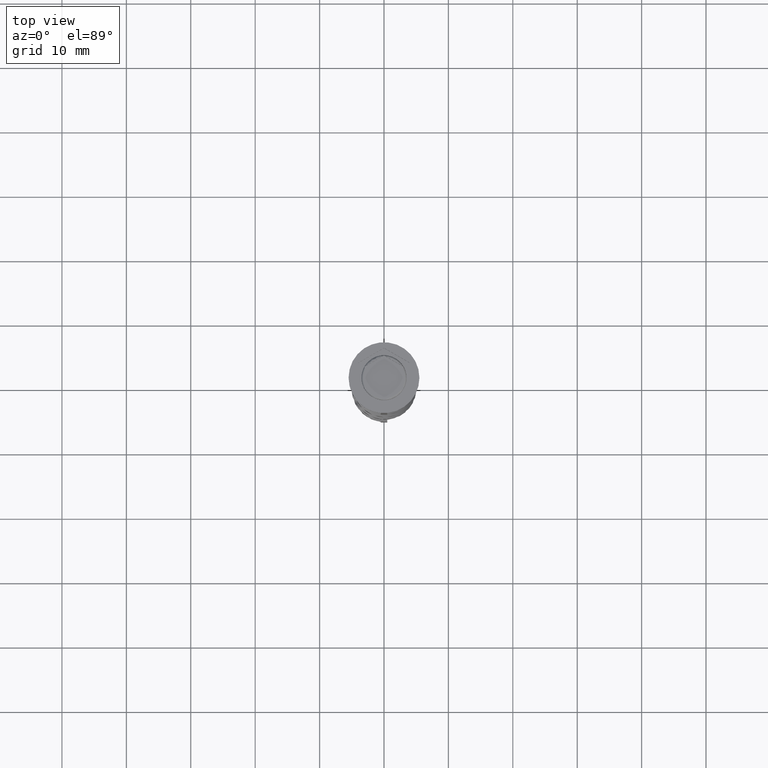
[diagram: clean part render]
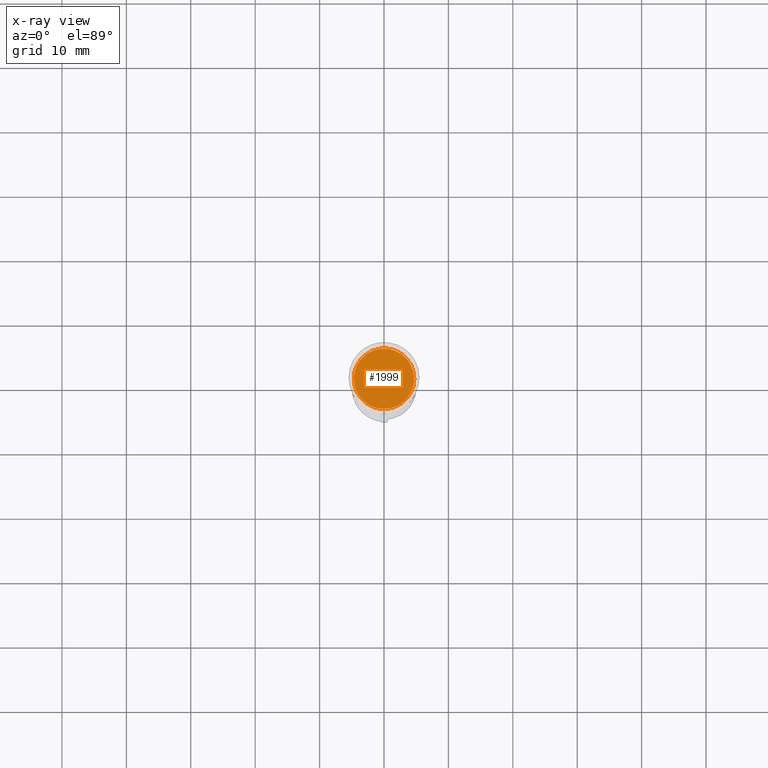
[diagram: x-ray — body ghosted, one internal face saturated and labeled with its STEP entity id]
A machine part, top view, then the same camera in x-ray: the body is ghosted and one INTERNAL B-rep face — a face not visible from any outside direction — is saturated and labeled: STEP entity #1999.
In plain terms, the highlighted planar face has unit normal (0, 0, -1).
Its self-contained STEP definition (entity closure, byte-faithful):
#115 = CARTESIAN_POINT ( 'NONE',  ( 0.000000000000000000, 0.000000000000000000, -10.50000000000000178 ) ) ;
#169 = VERTEX_POINT ( 'NONE', #3093 ) ;
#252 = AXIS2_PLACEMENT_3D ( 'NONE', #115, #1220, #976 ) ;
#976 = DIRECTION ( 'NONE',  ( -1.000000000000000000, 0.000000000000000000, 0.000000000000000000 ) ) ;
#985 = ORIENTED_EDGE ( 'NONE', *, *, #2861, .T. ) ;
#1087 = CARTESIAN_POINT ( 'NONE',  ( 0.000000000000000000, 0.000000000000000000, -10.50000000000000178 ) ) ;
#1124 = EDGE_LOOP ( 'NONE', ( #2792, #985 ) ) ;
#1220 = DIRECTION ( 'NONE',  ( -0.000000000000000000, -0.000000000000000000, 1.000000000000000000 ) ) ;
#1446 = AXIS2_PLACEMENT_3D ( 'NONE', #1735, #3176, #2022 ) ;
#1735 = CARTESIAN_POINT ( 'NONE',  ( 0.000000000000000000, 0.000000000000000000, -10.50000000000000178 ) ) ;
#1999 = ADVANCED_FACE ( 'NONE', ( #2283 ), #2580, .F. ) ;
#2022 = DIRECTION ( 'NONE',  ( -1.000000000000000000, 0.000000000000000000, -0.000000000000000000 ) ) ;
#2283 = FACE_OUTER_BOUND ( 'NONE', #1124, .T. ) ;
#2580 = PLANE ( 'NONE',  #1446 ) ;
#2594 = EDGE_CURVE ( 'NONE', #3605, #169, #2703, .T. ) ;
#2703 = CIRCLE ( 'NONE', #3244, 4.700000000000001066 ) ;
#2792 = ORIENTED_EDGE ( 'NONE', *, *, #2594, .T. ) ;
#2861 = EDGE_CURVE ( 'NONE', #169, #3605, #3300, .T. ) ;
#3093 = CARTESIAN_POINT ( 'NONE',  ( 4.700000000000001066, 5.939536975864663955E-16, -10.50000000000000178 ) ) ;
#3176 = DIRECTION ( 'NONE',  ( 0.000000000000000000, 0.000000000000000000, -1.000000000000000000 ) ) ;
#3244 = AXIS2_PLACEMENT_3D ( 'NONE', #1087, #3283, #3321 ) ;
#3283 = DIRECTION ( 'NONE',  ( -0.000000000000000000, -0.000000000000000000, 1.000000000000000000 ) ) ;
#3285 = CARTESIAN_POINT ( 'NONE',  ( -4.700000000000001066, 0.000000000000000000, -10.50000000000000178 ) ) ;
#3300 = CIRCLE ( 'NONE', #252, 4.700000000000001066 ) ;
#3321 = DIRECTION ( 'NONE',  ( -1.000000000000000000, 0.000000000000000000, 0.000000000000000000 ) ) ;
#3605 = VERTEX_POINT ( 'NONE', #3285 ) ;